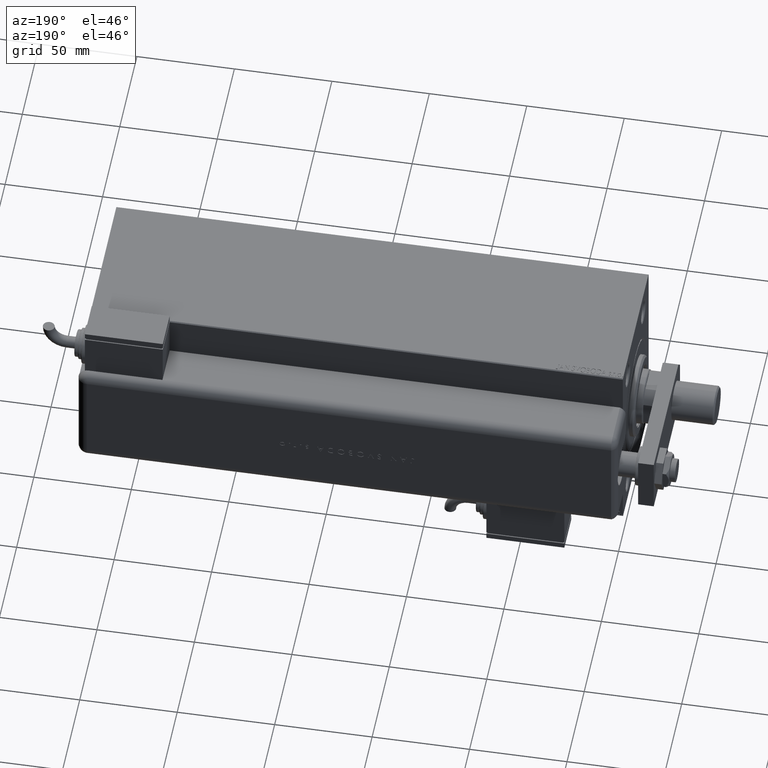
[diagram: clean part render]
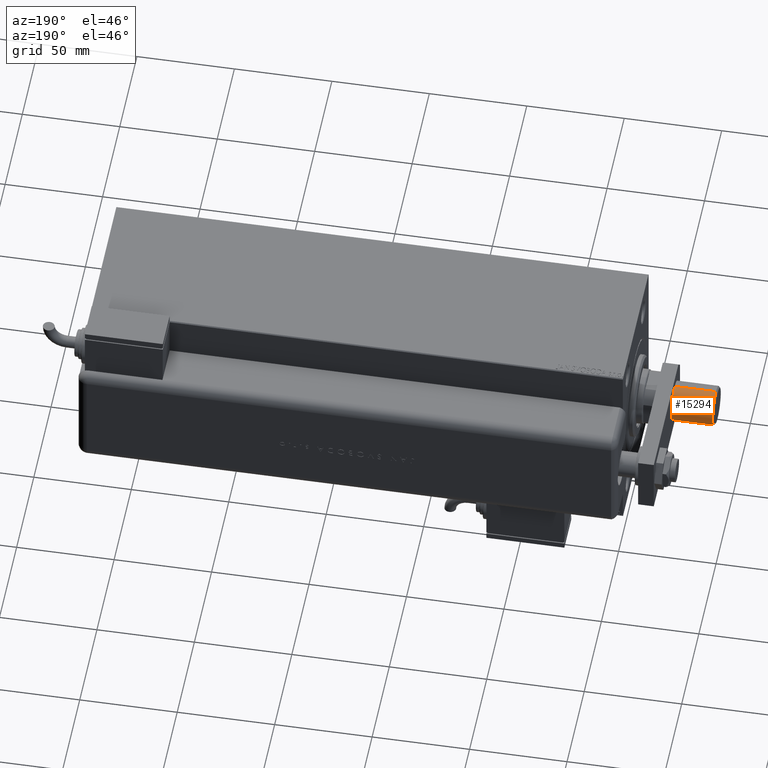
[diagram: same view with one face highlighted and labeled with its STEP entity id]
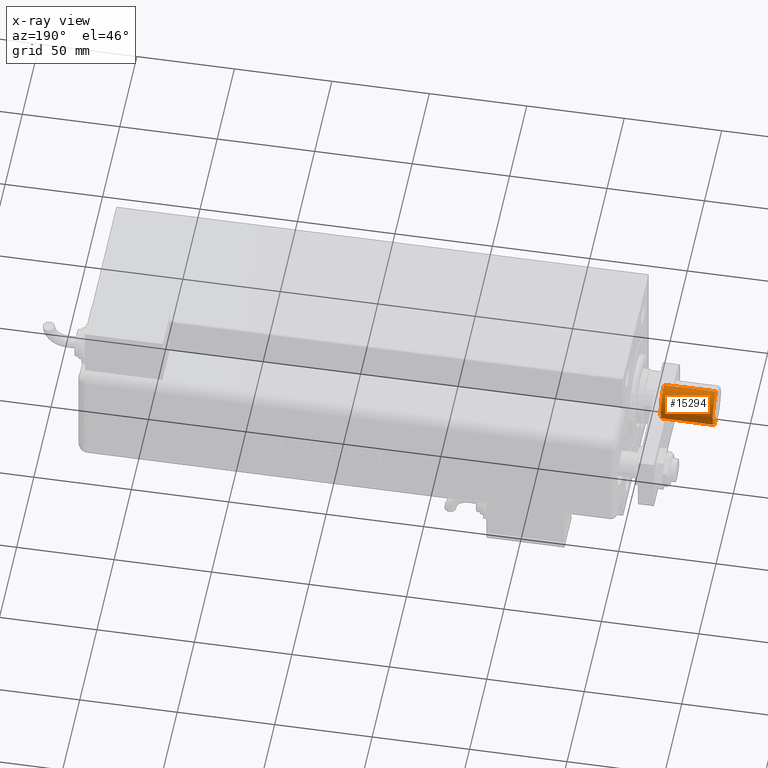
[diagram: x-ray of the same camera — body ghosted, the highlighted face saturated]
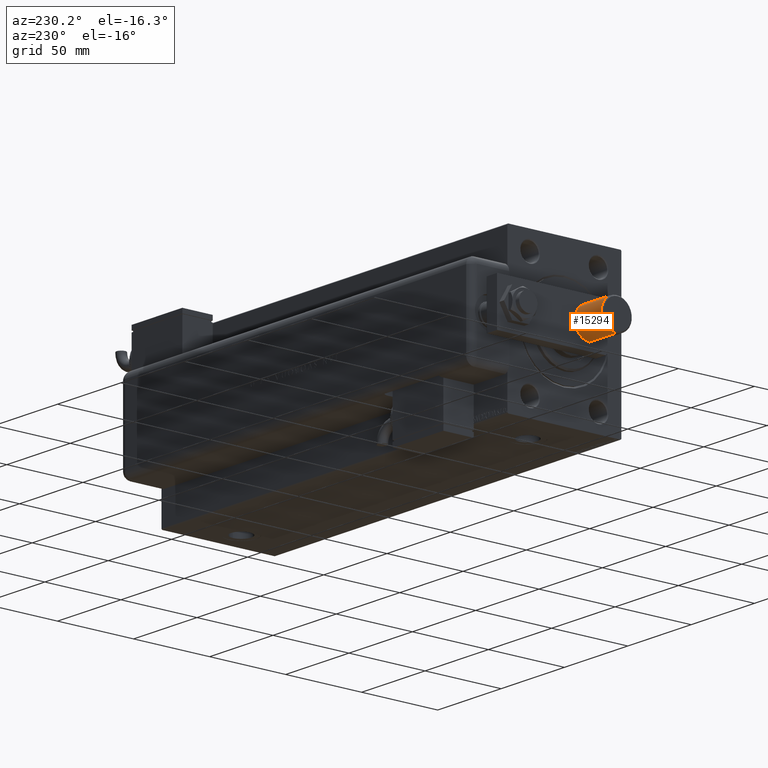
[diagram: same view with one face highlighted and labeled with its STEP entity id]
A machine part, auxiliary view. The second image highlights one B-rep face of the part: STEP entity #15294.
The next image is the same camera in x-ray: the body ghosted, the highlighted face saturated — about 0% of this face is hidden behind the body in this view.
A second angle (auxiliary view) of the same face is appended — the face is thin or edge-on in the first view.
In plain terms, the highlighted cylindrical surface (edge-blend (fillet) strip) has radius 10 mm, axis along (-1, -0, 0).
Its self-contained STEP definition (entity closure, byte-faithful):
#2128 = CARTESIAN_POINT ( 'NONE',  ( 0.000000000000000000, 0.000000000000000000, 27.50000000000000000 ) ) ;
#2631 = CARTESIAN_POINT ( 'NONE',  ( 0.000000000000000000, 0.000000000000000000, 27.50000000000000000 ) ) ;
#6904 = CARTESIAN_POINT ( 'NONE',  ( 10.00000000000000000, 1.224646799147353256E-15, 0.7999999999999986011 ) ) ;
#7318 = CARTESIAN_POINT ( 'NONE',  ( -10.00000000000000000, 0.000000000000000000, 27.50000000000000000 ) ) ;
#8162 = CARTESIAN_POINT ( 'NONE',  ( 0.000000000000000000, 0.000000000000000000, 0.7999999999999986011 ) ) ;
#8937 = ORIENTED_EDGE ( 'NONE', *, *, #47756, .F. ) ;
#9756 = EDGE_CURVE ( 'NONE', #40832, #51701, #29884, .T. ) ;
#15294 = ADVANCED_FACE ( 'NONE', ( #30597 ), #49301, .T. ) ;
#15624 = DIRECTION ( 'NONE',  ( -0.000000000000000000, -0.000000000000000000, -1.000000000000000000 ) ) ;
#20476 = CARTESIAN_POINT ( 'NONE',  ( -10.00000000000000000, 0.000000000000000000, 0.7999999999999986011 ) ) ;
#21370 = DIRECTION ( 'NONE',  ( -0.000000000000000000, -0.000000000000000000, -1.000000000000000000 ) ) ;
#22573 = ORIENTED_EDGE ( 'NONE', *, *, #45825, .T. ) ;
#22754 = ORIENTED_EDGE ( 'NONE', *, *, #9756, .T. ) ;
#29884 = CIRCLE ( 'NONE', #37728, 10.00000000000000000 ) ;
#30597 = FACE_OUTER_BOUND ( 'NONE', #36822, .T. ) ;
#30900 = DIRECTION ( 'NONE',  ( 1.000000000000000000, 0.000000000000000000, 0.000000000000000000 ) ) ;
#31693 = VECTOR ( 'NONE', #15624, 1000.000000000000000 ) ;
#34925 = VECTOR ( 'NONE', #49084, 1000.000000000000000 ) ;
#36822 = EDGE_LOOP ( 'NONE', ( #8937, #22573, #22754, #45520 ) ) ;
#37272 = VERTEX_POINT ( 'NONE', #55662 ) ;
#37728 = AXIS2_PLACEMENT_3D ( 'NONE', #8162, #54225, #30900 ) ;
#39879 = LINE ( 'NONE', #57705, #31693 ) ;
#40832 = VERTEX_POINT ( 'NONE', #6904 ) ;
#44374 = AXIS2_PLACEMENT_3D ( 'NONE', #2128, #47906, #58308 ) ;
#44770 = LINE ( 'NONE', #7318, #34925 ) ;
#45520 = ORIENTED_EDGE ( 'NONE', *, *, #51476, .F. ) ;
#45825 = EDGE_CURVE ( 'NONE', #58840, #40832, #39879, .T. ) ;
#46287 = CARTESIAN_POINT ( 'NONE',  ( 10.00000000000000000, 1.224646799147353256E-15, 27.50000000000000000 ) ) ;
#47756 = EDGE_CURVE ( 'NONE', #58840, #37272, #56119, .T. ) ;
#47906 = DIRECTION ( 'NONE',  ( 0.000000000000000000, 0.000000000000000000, 1.000000000000000000 ) ) ;
#49084 = DIRECTION ( 'NONE',  ( -0.000000000000000000, -0.000000000000000000, -1.000000000000000000 ) ) ;
#49301 = CYLINDRICAL_SURFACE ( 'NONE', #51690, 10.00000000000000000 ) ;
#51476 = EDGE_CURVE ( 'NONE', #37272, #51701, #44770, .T. ) ;
#51690 = AXIS2_PLACEMENT_3D ( 'NONE', #2631, #21370, #54218 ) ;
#51701 = VERTEX_POINT ( 'NONE', #20476 ) ;
#54218 = DIRECTION ( 'NONE',  ( -1.000000000000000000, 0.000000000000000000, 0.000000000000000000 ) ) ;
#54225 = DIRECTION ( 'NONE',  ( -0.000000000000000000, -0.000000000000000000, 1.000000000000000000 ) ) ;
#55662 = CARTESIAN_POINT ( 'NONE',  ( -10.00000000000000000, 0.000000000000000000, 27.50000000000000000 ) ) ;
#56119 = CIRCLE ( 'NONE', #44374, 10.00000000000000000 ) ;
#57705 = CARTESIAN_POINT ( 'NONE',  ( 10.00000000000000000, 1.224646799147353256E-15, 27.50000000000000000 ) ) ;
#58308 = DIRECTION ( 'NONE',  ( 1.000000000000000000, 0.000000000000000000, 0.000000000000000000 ) ) ;
#58840 = VERTEX_POINT ( 'NONE', #46287 ) ;